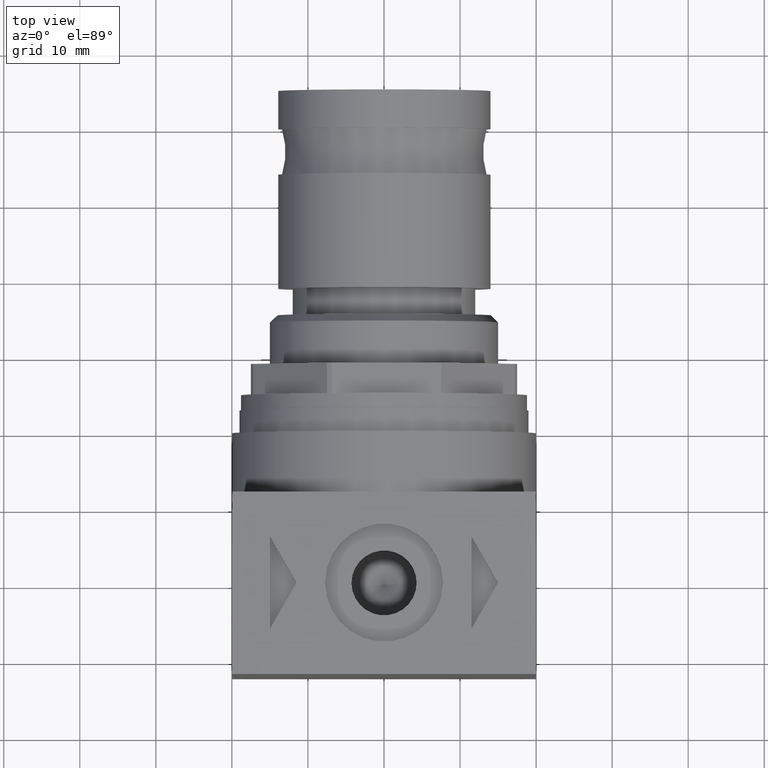
[diagram: clean part render]
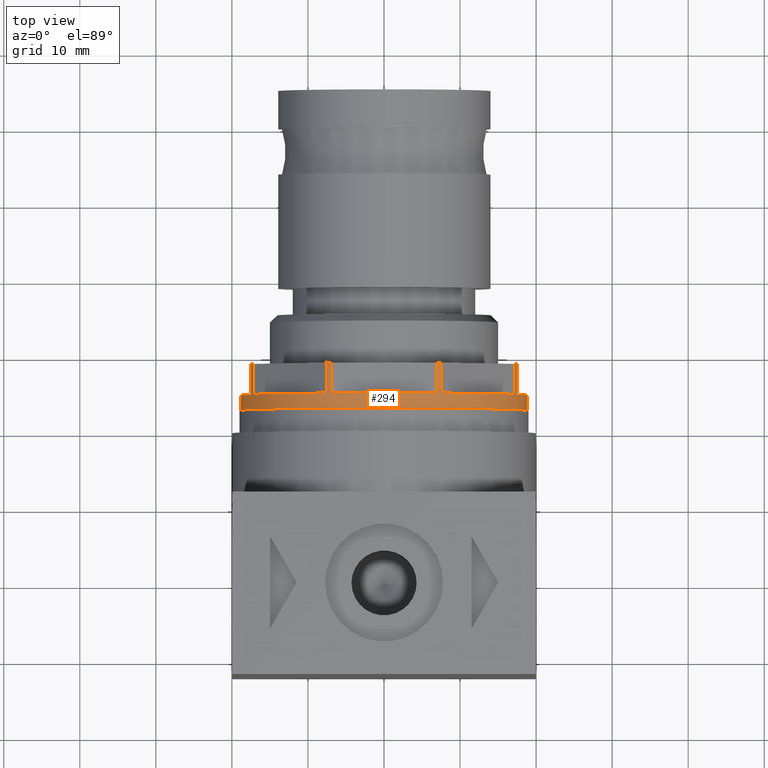
[diagram: same view with one face highlighted and labeled with its STEP entity id]
A machine part, top view. The second image highlights one B-rep face of the part: STEP entity #294.
In plain terms, the highlighted cylindrical surface (bore or boss wall) has radius 18.8 mm, axis along (-0, -1, 0).
Its self-contained STEP definition (entity closure, byte-faithful):
#294 = ADVANCED_FACE( '', ( #648, #649 ), #650, .T. );
#648 = FACE_OUTER_BOUND( '', #1093, .T. );
#649 = FACE_OUTER_BOUND( '', #1094, .T. );
#650 = CYLINDRICAL_SURFACE( '', #1095, 18.8000000000000 );
#1093 = EDGE_LOOP( '', ( #1687, #1688, #1689, #1690, #1691, #1692, #1693, #1694, #1695, #1696, #1697, #1698, #1699, #1700, #1701, #1702, #1703, #1704, #1705, #1706, #1707, #1708, #1709, #1710, #1711, #1712, #1713, #1714, #1715, #1716, #1717, #1718 ) );
#1094 = EDGE_LOOP( '', ( #1719 ) );
#1095 = AXIS2_PLACEMENT_3D( '', #1720, #1721, #1722 );
#1687 = ORIENTED_EDGE( '', *, *, #2583, .F. );
#1688 = ORIENTED_EDGE( '', *, *, #2547, .F. );
#1689 = ORIENTED_EDGE( '', *, *, #2584, .F. );
#1690 = ORIENTED_EDGE( '', *, *, #2585, .F. );
#1691 = ORIENTED_EDGE( '', *, *, #2586, .F. );
#1692 = ORIENTED_EDGE( '', *, *, #2587, .F. );
#1693 = ORIENTED_EDGE( '', *, *, #2588, .F. );
#1694 = ORIENTED_EDGE( '', *, *, #2589, .F. );
#1695 = ORIENTED_EDGE( '', *, *, #2458, .F. );
#1696 = ORIENTED_EDGE( '', *, *, #2590, .F. );
#1697 = ORIENTED_EDGE( '', *, *, #2591, .F. );
#1698 = ORIENTED_EDGE( '', *, *, #2592, .F. );
#1699 = ORIENTED_EDGE( '', *, *, #2593, .F. );
#1700 = ORIENTED_EDGE( '', *, *, #2594, .F. );
#1701 = ORIENTED_EDGE( '', *, *, #2595, .F. );
#1702 = ORIENTED_EDGE( '', *, *, #2596, .F. );
#1703 = ORIENTED_EDGE( '', *, *, #2550, .F. );
#1704 = ORIENTED_EDGE( '', *, *, #2597, .F. );
#1705 = ORIENTED_EDGE( '', *, *, #2598, .F. );
#1706 = ORIENTED_EDGE( '', *, *, #2599, .F. );
#1707 = ORIENTED_EDGE( '', *, *, #2600, .F. );
#1708 = ORIENTED_EDGE( '', *, *, #2601, .F. );
#1709 = ORIENTED_EDGE( '', *, *, #2602, .F. );
#1710 = ORIENTED_EDGE( '', *, *, #2461, .F. );
#1711 = ORIENTED_EDGE( '', *, *, #2603, .F. );
#1712 = ORIENTED_EDGE( '', *, *, #2463, .F. );
#1713 = ORIENTED_EDGE( '', *, *, #2604, .F. );
#1714 = ORIENTED_EDGE( '', *, *, #2441, .F. );
#1715 = ORIENTED_EDGE( '', *, *, #2605, .F. );
#1716 = ORIENTED_EDGE( '', *, *, #2443, .F. );
#1717 = ORIENTED_EDGE( '', *, *, #2606, .F. );
#1718 = ORIENTED_EDGE( '', *, *, #2545, .F. );
#1719 = ORIENTED_EDGE( '', *, *, #2607, .T. );
#1720 = CARTESIAN_POINT( '', ( 9.00000000000000, 0.000000000000000, 0.000000000000000 ) );
#1721 = DIRECTION( '', ( -1.00000000000000, -0.000000000000000, 0.000000000000000 ) );
#1722 = DIRECTION( '', ( -0.000000000000000, 0.000000000000000, -1.00000000000000 ) );
#2441 = EDGE_CURVE( '', #2850, #2851, #2852, .T. );
#2443 = EDGE_CURVE( '', #2853, #2855, #2856, .F. );
#2458 = EDGE_CURVE( '', #2879, #2880, #2881, .T. );
#2461 = EDGE_CURVE( '', #2884, #2885, #2886, .T. );
#2463 = EDGE_CURVE( '', #2887, #2889, #2890, .F. );
#2545 = EDGE_CURVE( '', #3021, #3022, #3023, .T. );
#2547 = EDGE_CURVE( '', #3024, #3026, #3027, .F. );
#2550 = EDGE_CURVE( '', #3030, #3031, #3032, .T. );
#2583 = EDGE_CURVE( '', #3026, #3021, #3080, .T. );
#2584 = EDGE_CURVE( '', #3081, #3024, #3082, .T. );
#2585 = EDGE_CURVE( '', #3083, #3081, #3084, .T. );
#2586 = EDGE_CURVE( '', #3085, #3083, #3086, .T. );
#2587 = EDGE_CURVE( '', #3087, #3085, #3088, .F. );
#2588 = EDGE_CURVE( '', #3089, #3087, #3090, .T. );
#2589 = EDGE_CURVE( '', #2880, #3089, #3091, .T. );
#2590 = EDGE_CURVE( '', #3092, #2879, #3093, .F. );
#2591 = EDGE_CURVE( '', #3094, #3092, #3095, .T. );
#2592 = EDGE_CURVE( '', #3096, #3094, #3097, .T. );
#2593 = EDGE_CURVE( '', #3098, #3096, #3099, .T. );
#2594 = EDGE_CURVE( '', #3100, #3098, #3101, .F. );
#2595 = EDGE_CURVE( '', #3102, #3100, #3103, .T. );
#2596 = EDGE_CURVE( '', #3031, #3102, #3104, .T. );
#2597 = EDGE_CURVE( '', #3105, #3030, #3106, .F. );
#2598 = EDGE_CURVE( '', #3107, #3105, #3108, .T. );
#2599 = EDGE_CURVE( '', #3109, #3107, #3110, .T. );
#2600 = EDGE_CURVE( '', #3111, #3109, #3112, .T. );
#2601 = EDGE_CURVE( '', #3113, #3111, #3114, .F. );
#2602 = EDGE_CURVE( '', #2885, #3113, #3115, .T. );
#2603 = EDGE_CURVE( '', #2889, #2884, #3116, .T. );
#2604 = EDGE_CURVE( '', #2851, #2887, #3117, .T. );
#2605 = EDGE_CURVE( '', #2855, #2850, #3118, .T. );
#2606 = EDGE_CURVE( '', #3022, #2853, #3119, .T. );
#2607 = EDGE_CURVE( '', #3120, #3120, #3121, .T. );
#2850 = VERTEX_POINT( '', #3439 );
#2851 = VERTEX_POINT( '', #3440 );
#2852 = LINE( '', #3441, #3442 );
#2853 = VERTEX_POINT( '', #3443 );
#2855 = VERTEX_POINT( '', #3446 );
#2856 = LINE( '', #3447, #3448 );
#2879 = VERTEX_POINT( '', #3472 );
#2880 = VERTEX_POINT( '', #3473 );
#2881 = CIRCLE( '', #3474, 18.8000000000000 );
#2884 = VERTEX_POINT( '', #3478 );
#2885 = VERTEX_POINT( '', #3479 );
#2886 = LINE( '', #3480, #3481 );
#2887 = VERTEX_POINT( '', #3482 );
#2889 = VERTEX_POINT( '', #3485 );
#2890 = LINE( '', #3486, #3487 );
#3021 = VERTEX_POINT( '', #3660 );
#3022 = VERTEX_POINT( '', #3661 );
#3023 = LINE( '', #3662, #3663 );
#3024 = VERTEX_POINT( '', #3664 );
#3026 = VERTEX_POINT( '', #3667 );
#3027 = LINE( '', #3668, #3669 );
#3030 = VERTEX_POINT( '', #3673 );
#3031 = VERTEX_POINT( '', #3674 );
#3032 = CIRCLE( '', #3675, 18.8000000000000 );
#3080 = CIRCLE( '', #3735, 18.8000000000000 );
#3081 = VERTEX_POINT( '', #3736 );
#3082 = CIRCLE( '', #3737, 18.8000000000000 );
#3083 = VERTEX_POINT( '', #3738 );
#3084 = LINE( '', #3739, #3740 );
#3085 = VERTEX_POINT( '', #3741 );
#3086 = CIRCLE( '', #3742, 18.8000000000000 );
#3087 = VERTEX_POINT( '', #3743 );
#3088 = LINE( '', #3744, #3745 );
#3089 = VERTEX_POINT( '', #3746 );
#3090 = CIRCLE( '', #3747, 18.8000000000000 );
#3091 = LINE( '', #3748, #3749 );
#3092 = VERTEX_POINT( '', #3750 );
#3093 = LINE( '', #3751, #3752 );
#3094 = VERTEX_POINT( '', #3753 );
#3095 = CIRCLE( '', #3754, 18.8000000000000 );
#3096 = VERTEX_POINT( '', #3755 );
#3097 = LINE( '', #3756, #3757 );
#3098 = VERTEX_POINT( '', #3758 );
#3099 = CIRCLE( '', #3759, 18.8000000000000 );
#3100 = VERTEX_POINT( '', #3760 );
#3101 = LINE( '', #3761, #3762 );
#3102 = VERTEX_POINT( '', #3763 );
#3103 = CIRCLE( '', #3764, 18.8000000000000 );
#3104 = LINE( '', #3765, #3766 );
#3105 = VERTEX_POINT( '', #3767 );
#3106 = LINE( '', #3768, #3769 );
#3107 = VERTEX_POINT( '', #3770 );
#3108 = CIRCLE( '', #3771, 18.8000000000000 );
#3109 = VERTEX_POINT( '', #3772 );
#3110 = LINE( '', #3773, #3774 );
#3111 = VERTEX_POINT( '', #3775 );
#3112 = CIRCLE( '', #3776, 18.8000000000000 );
#3113 = VERTEX_POINT( '', #3777 );
#3114 = LINE( '', #3778, #3779 );
#3115 = CIRCLE( '', #3780, 18.8000000000000 );
#3116 = CIRCLE( '', #3781, 18.8000000000000 );
#3117 = CIRCLE( '', #3782, 18.8000000000000 );
#3118 = CIRCLE( '', #3783, 18.8000000000000 );
#3119 = CIRCLE( '', #3784, 18.8000000000000 );
#3120 = VERTEX_POINT( '', #3785 );
#3121 = CIRCLE( '', #3786, 18.8000000000000 );
#3439 = CARTESIAN_POINT( '', ( 5.00000000000000, 7.51690019428426, 17.2318371472449 ) );
#3440 = CARTESIAN_POINT( '', ( 9.00000000000000, 7.51690019428427, 17.2318371472449 ) );
#3441 = CARTESIAN_POINT( '', ( 9.00000000000000, 7.51690019428427, 17.2318371472449 ) );
#3442 = VECTOR( '', #4157, 1000.00000000000 );
#3443 = CARTESIAN_POINT( '', ( 9.00000000000000, 17.2318371472449, 7.51690019428425 ) );
#3446 = CARTESIAN_POINT( '', ( 5.00000000000000, 17.2318371472449, 7.51690019428424 ) );
#3447 = CARTESIAN_POINT( '', ( 9.00000000000000, 17.2318371472449, 7.51690019428425 ) );
#3448 = VECTOR( '', #4159, 1000.00000000000 );
#3472 = CARTESIAN_POINT( '', ( 5.00000000000000, -6.86949779823824, -17.5000000000000 ) );
#3473 = CARTESIAN_POINT( '', ( 5.00000000000000, 6.86949779823823, -17.5000000000000 ) );
#3474 = AXIS2_PLACEMENT_3D( '', #4185, #4186, #4187 );
#3478 = CARTESIAN_POINT( '', ( 5.00000000000000, -6.86949779823824, 17.5000000000000 ) );
#3479 = CARTESIAN_POINT( '', ( 9.00000000000000, -6.86949779823824, 17.5000000000000 ) );
#3480 = CARTESIAN_POINT( '', ( 9.00000000000000, -6.86949779823824, 17.5000000000000 ) );
#3481 = VECTOR( '', #4189, 1000.00000000000 );
#3482 = CARTESIAN_POINT( '', ( 9.00000000000000, 6.86949779823824, 17.5000000000000 ) );
#3485 = CARTESIAN_POINT( '', ( 5.00000000000000, 6.86949779823824, 17.5000000000000 ) );
#3486 = CARTESIAN_POINT( '', ( 9.00000000000000, 6.86949779823824, 17.5000000000000 ) );
#3487 = VECTOR( '', #4191, 1000.00000000000 );
#3660 = CARTESIAN_POINT( '', ( 5.00000000000000, 17.5000000000000, 6.86949779823823 ) );
#3661 = CARTESIAN_POINT( '', ( 9.00000000000000, 17.5000000000000, 6.86949779823823 ) );
#3662 = CARTESIAN_POINT( '', ( 9.00000000000000, 17.5000000000000, 6.86949779823823 ) );
#3663 = VECTOR( '', #4285, 1000.00000000000 );
#3664 = CARTESIAN_POINT( '', ( 9.00000000000000, 17.5000000000000, -6.86949779823825 ) );
#3667 = CARTESIAN_POINT( '', ( 5.00000000000000, 17.5000000000000, -6.86949779823825 ) );
#3668 = CARTESIAN_POINT( '', ( 9.00000000000000, 17.5000000000000, -6.86949779823825 ) );
#3669 = VECTOR( '', #4287, 1000.00000000000 );
#3673 = CARTESIAN_POINT( '', ( 5.00000000000000, -17.5000000000000, 6.86949779823824 ) );
#3674 = CARTESIAN_POINT( '', ( 5.00000000000000, -17.5000000000000, -6.86949779823823 ) );
#3675 = AXIS2_PLACEMENT_3D( '', #4289, #4290, #4291 );
#3735 = AXIS2_PLACEMENT_3D( '', #4328, #4329, #4330 );
#3736 = CARTESIAN_POINT( '', ( 9.00000000000000, 17.2318371472449, -7.51690019428427 ) );
#3737 = AXIS2_PLACEMENT_3D( '', #4331, #4332, #4333 );
#3738 = CARTESIAN_POINT( '', ( 5.00000000000000, 17.2318371472449, -7.51690019428426 ) );
#3739 = CARTESIAN_POINT( '', ( 9.00000000000000, 17.2318371472449, -7.51690019428428 ) );
#3740 = VECTOR( '', #4334, 1000.00000000000 );
#3741 = CARTESIAN_POINT( '', ( 5.00000000000000, 7.51690019428425, -17.2318371472449 ) );
#3742 = AXIS2_PLACEMENT_3D( '', #4335, #4336, #4337 );
#3743 = CARTESIAN_POINT( '', ( 9.00000000000000, 7.51690019428426, -17.2318371472449 ) );
#3744 = CARTESIAN_POINT( '', ( 9.00000000000000, 7.51690019428427, -17.2318371472449 ) );
#3745 = VECTOR( '', #4338, 1000.00000000000 );
#3746 = CARTESIAN_POINT( '', ( 9.00000000000000, 6.86949779823823, -17.5000000000000 ) );
#3747 = AXIS2_PLACEMENT_3D( '', #4339, #4340, #4341 );
#3748 = CARTESIAN_POINT( '', ( 9.00000000000000, 6.86949779823823, -17.5000000000000 ) );
#3749 = VECTOR( '', #4342, 1000.00000000000 );
#3750 = CARTESIAN_POINT( '', ( 9.00000000000000, -6.86949779823824, -17.5000000000000 ) );
#3751 = CARTESIAN_POINT( '', ( 9.00000000000000, -6.86949779823824, -17.5000000000000 ) );
#3752 = VECTOR( '', #4343, 1000.00000000000 );
#3753 = CARTESIAN_POINT( '', ( 9.00000000000000, -7.51690019428426, -17.2318371472449 ) );
#3754 = AXIS2_PLACEMENT_3D( '', #4344, #4345, #4346 );
#3755 = CARTESIAN_POINT( '', ( 5.00000000000000, -7.51690019428427, -17.2318371472449 ) );
#3756 = CARTESIAN_POINT( '', ( 9.00000000000000, -7.51690019428427, -17.2318371472449 ) );
#3757 = VECTOR( '', #4347, 1000.00000000000 );
#3758 = CARTESIAN_POINT( '', ( 5.00000000000000, -17.2318371472449, -7.51690019428426 ) );
#3759 = AXIS2_PLACEMENT_3D( '', #4348, #4349, #4350 );
#3760 = CARTESIAN_POINT( '', ( 9.00000000000000, -17.2318371472449, -7.51690019428426 ) );
#3761 = CARTESIAN_POINT( '', ( 9.00000000000000, -17.2318371472449, -7.51690019428426 ) );
#3762 = VECTOR( '', #4351, 1000.00000000000 );
#3763 = CARTESIAN_POINT( '', ( 9.00000000000000, -17.5000000000000, -6.86949779823824 ) );
#3764 = AXIS2_PLACEMENT_3D( '', #4352, #4353, #4354 );
#3765 = CARTESIAN_POINT( '', ( 9.00000000000000, -17.5000000000000, -6.86949779823823 ) );
#3766 = VECTOR( '', #4355, 1000.00000000000 );
#3767 = CARTESIAN_POINT( '', ( 9.00000000000000, -17.5000000000000, 6.86949779823825 ) );
#3768 = CARTESIAN_POINT( '', ( 9.00000000000000, -17.5000000000000, 6.86949779823824 ) );
#3769 = VECTOR( '', #4356, 1000.00000000000 );
#3770 = CARTESIAN_POINT( '', ( 9.00000000000000, -17.2318371472449, 7.51690019428426 ) );
#3771 = AXIS2_PLACEMENT_3D( '', #4357, #4358, #4359 );
#3772 = CARTESIAN_POINT( '', ( 5.00000000000000, -17.2318371472449, 7.51690019428426 ) );
#3773 = CARTESIAN_POINT( '', ( 9.00000000000000, -17.2318371472449, 7.51690019428426 ) );
#3774 = VECTOR( '', #4360, 1000.00000000000 );
#3775 = CARTESIAN_POINT( '', ( 5.00000000000000, -7.51690019428426, 17.2318371472449 ) );
#3776 = AXIS2_PLACEMENT_3D( '', #4361, #4362, #4363 );
#3777 = CARTESIAN_POINT( '', ( 9.00000000000000, -7.51690019428426, 17.2318371472449 ) );
#3778 = CARTESIAN_POINT( '', ( 9.00000000000000, -7.51690019428426, 17.2318371472449 ) );
#3779 = VECTOR( '', #4364, 1000.00000000000 );
#3780 = AXIS2_PLACEMENT_3D( '', #4365, #4366, #4367 );
#3781 = AXIS2_PLACEMENT_3D( '', #4368, #4369, #4370 );
#3782 = AXIS2_PLACEMENT_3D( '', #4371, #4372, #4373 );
#3783 = AXIS2_PLACEMENT_3D( '', #4374, #4375, #4376 );
#3784 = AXIS2_PLACEMENT_3D( '', #4377, #4378, #4379 );
#3785 = CARTESIAN_POINT( '', ( 3.00000000000000, 0.000000000000000, -18.8000000000000 ) );
#3786 = AXIS2_PLACEMENT_3D( '', #4380, #4381, #4382 );
#4157 = DIRECTION( '', ( 1.00000000000000, -0.000000000000000, -0.000000000000000 ) );
#4159 = DIRECTION( '', ( 1.00000000000000, -0.000000000000000, -0.000000000000000 ) );
#4185 = CARTESIAN_POINT( '', ( 5.00000000000000, 0.000000000000000, 0.000000000000000 ) );
#4186 = DIRECTION( '', ( 1.00000000000000, -0.000000000000000, 0.000000000000000 ) );
#4187 = DIRECTION( '', ( 0.000000000000000, 0.000000000000000, -1.00000000000000 ) );
#4189 = DIRECTION( '', ( 1.00000000000000, -0.000000000000000, -0.000000000000000 ) );
#4191 = DIRECTION( '', ( 1.00000000000000, -0.000000000000000, -0.000000000000000 ) );
#4285 = DIRECTION( '', ( 1.00000000000000, -0.000000000000000, -0.000000000000000 ) );
#4287 = DIRECTION( '', ( 1.00000000000000, -0.000000000000000, -0.000000000000000 ) );
#4289 = CARTESIAN_POINT( '', ( 5.00000000000000, 0.000000000000000, 0.000000000000000 ) );
#4290 = DIRECTION( '', ( 1.00000000000000, -0.000000000000000, 0.000000000000000 ) );
#4291 = DIRECTION( '', ( 0.000000000000000, 0.000000000000000, -1.00000000000000 ) );
#4328 = CARTESIAN_POINT( '', ( 5.00000000000000, 0.000000000000000, 0.000000000000000 ) );
#4329 = DIRECTION( '', ( 1.00000000000000, -0.000000000000000, 0.000000000000000 ) );
#4330 = DIRECTION( '', ( 0.000000000000000, 0.000000000000000, -1.00000000000000 ) );
#4331 = CARTESIAN_POINT( '', ( 9.00000000000000, 0.000000000000000, 0.000000000000000 ) );
#4332 = DIRECTION( '', ( 1.00000000000000, 0.000000000000000, -0.000000000000000 ) );
#4333 = DIRECTION( '', ( -0.000000000000000, 0.000000000000000, -1.00000000000000 ) );
#4334 = DIRECTION( '', ( 1.00000000000000, -0.000000000000000, -0.000000000000000 ) );
#4335 = CARTESIAN_POINT( '', ( 5.00000000000000, 0.000000000000000, 0.000000000000000 ) );
#4336 = DIRECTION( '', ( 1.00000000000000, -0.000000000000000, 0.000000000000000 ) );
#4337 = DIRECTION( '', ( 0.000000000000000, 0.000000000000000, -1.00000000000000 ) );
#4338 = DIRECTION( '', ( 1.00000000000000, -0.000000000000000, -0.000000000000000 ) );
#4339 = CARTESIAN_POINT( '', ( 9.00000000000000, 0.000000000000000, 0.000000000000000 ) );
#4340 = DIRECTION( '', ( 1.00000000000000, 0.000000000000000, -0.000000000000000 ) );
#4341 = DIRECTION( '', ( -0.000000000000000, 0.000000000000000, -1.00000000000000 ) );
#4342 = DIRECTION( '', ( 1.00000000000000, -0.000000000000000, -0.000000000000000 ) );
#4343 = DIRECTION( '', ( 1.00000000000000, -0.000000000000000, -0.000000000000000 ) );
#4344 = CARTESIAN_POINT( '', ( 9.00000000000000, 0.000000000000000, 0.000000000000000 ) );
#4345 = DIRECTION( '', ( 1.00000000000000, 0.000000000000000, -0.000000000000000 ) );
#4346 = DIRECTION( '', ( -0.000000000000000, 0.000000000000000, -1.00000000000000 ) );
#4347 = DIRECTION( '', ( 1.00000000000000, -0.000000000000000, -0.000000000000000 ) );
#4348 = CARTESIAN_POINT( '', ( 5.00000000000000, 0.000000000000000, 0.000000000000000 ) );
#4349 = DIRECTION( '', ( 1.00000000000000, -0.000000000000000, 0.000000000000000 ) );
#4350 = DIRECTION( '', ( 0.000000000000000, 0.000000000000000, -1.00000000000000 ) );
#4351 = DIRECTION( '', ( 1.00000000000000, -0.000000000000000, -0.000000000000000 ) );
#4352 = CARTESIAN_POINT( '', ( 9.00000000000000, 0.000000000000000, 0.000000000000000 ) );
#4353 = DIRECTION( '', ( 1.00000000000000, 0.000000000000000, -0.000000000000000 ) );
#4354 = DIRECTION( '', ( -0.000000000000000, 0.000000000000000, -1.00000000000000 ) );
#4355 = DIRECTION( '', ( 1.00000000000000, -0.000000000000000, -0.000000000000000 ) );
#4356 = DIRECTION( '', ( 1.00000000000000, -0.000000000000000, -0.000000000000000 ) );
#4357 = CARTESIAN_POINT( '', ( 9.00000000000000, 0.000000000000000, 0.000000000000000 ) );
#4358 = DIRECTION( '', ( 1.00000000000000, 0.000000000000000, -0.000000000000000 ) );
#4359 = DIRECTION( '', ( -0.000000000000000, 0.000000000000000, -1.00000000000000 ) );
#4360 = DIRECTION( '', ( 1.00000000000000, -0.000000000000000, -0.000000000000000 ) );
#4361 = CARTESIAN_POINT( '', ( 5.00000000000000, 0.000000000000000, 0.000000000000000 ) );
#4362 = DIRECTION( '', ( 1.00000000000000, -0.000000000000000, 0.000000000000000 ) );
#4363 = DIRECTION( '', ( 0.000000000000000, 0.000000000000000, -1.00000000000000 ) );
#4364 = DIRECTION( '', ( 1.00000000000000, -0.000000000000000, -0.000000000000000 ) );
#4365 = CARTESIAN_POINT( '', ( 9.00000000000000, 0.000000000000000, 0.000000000000000 ) );
#4366 = DIRECTION( '', ( 1.00000000000000, 0.000000000000000, -0.000000000000000 ) );
#4367 = DIRECTION( '', ( -0.000000000000000, 0.000000000000000, -1.00000000000000 ) );
#4368 = CARTESIAN_POINT( '', ( 5.00000000000000, 0.000000000000000, 0.000000000000000 ) );
#4369 = DIRECTION( '', ( 1.00000000000000, -0.000000000000000, 0.000000000000000 ) );
#4370 = DIRECTION( '', ( 0.000000000000000, 0.000000000000000, -1.00000000000000 ) );
#4371 = CARTESIAN_POINT( '', ( 9.00000000000000, 0.000000000000000, 0.000000000000000 ) );
#4372 = DIRECTION( '', ( 1.00000000000000, 0.000000000000000, -0.000000000000000 ) );
#4373 = DIRECTION( '', ( -0.000000000000000, 0.000000000000000, -1.00000000000000 ) );
#4374 = CARTESIAN_POINT( '', ( 5.00000000000000, 0.000000000000000, 0.000000000000000 ) );
#4375 = DIRECTION( '', ( 1.00000000000000, -0.000000000000000, 0.000000000000000 ) );
#4376 = DIRECTION( '', ( 0.000000000000000, 0.000000000000000, -1.00000000000000 ) );
#4377 = CARTESIAN_POINT( '', ( 9.00000000000000, 0.000000000000000, 0.000000000000000 ) );
#4378 = DIRECTION( '', ( 1.00000000000000, 0.000000000000000, -0.000000000000000 ) );
#4379 = DIRECTION( '', ( -0.000000000000000, 0.000000000000000, -1.00000000000000 ) );
#4380 = CARTESIAN_POINT( '', ( 3.00000000000000, 0.000000000000000, 0.000000000000000 ) );
#4381 = DIRECTION( '', ( 1.00000000000000, 0.000000000000000, -0.000000000000000 ) );
#4382 = DIRECTION( '', ( -0.000000000000000, 0.000000000000000, -1.00000000000000 ) );